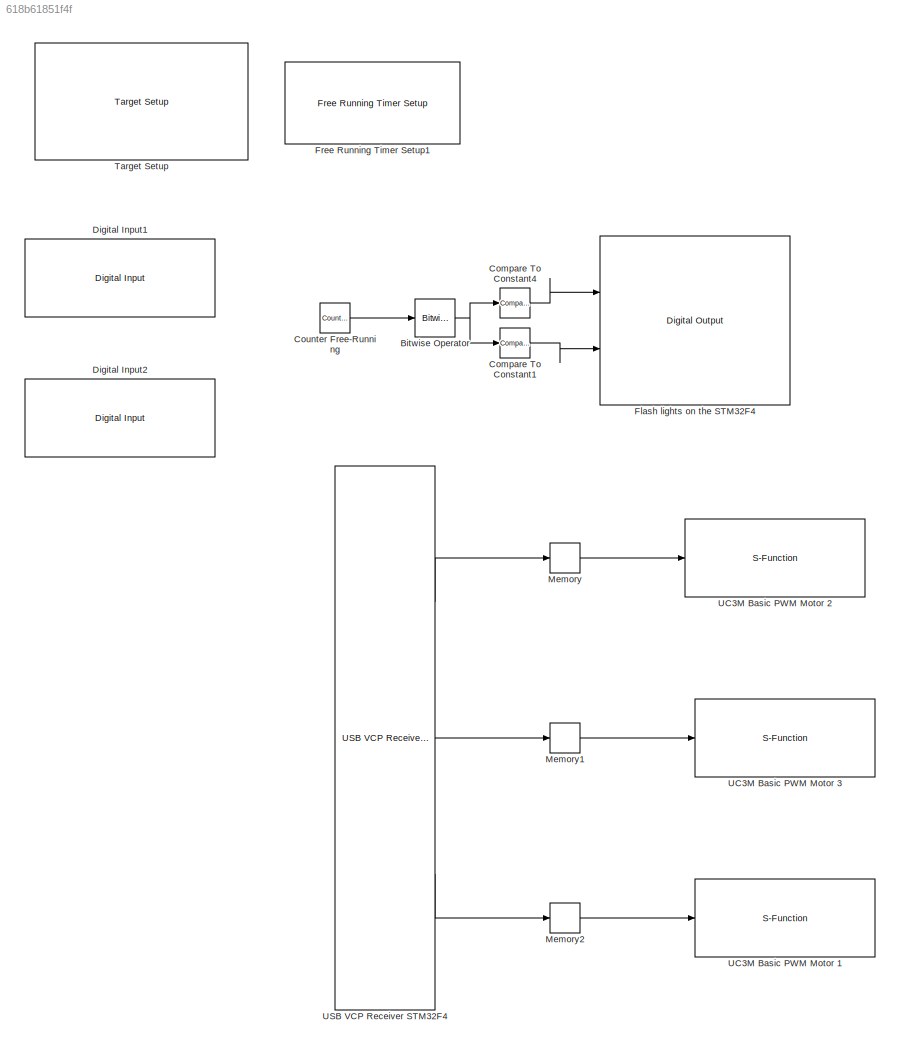
MODEL slx_618b61851f4f
KIND model
CONFIG AbsTol = auto
CONFIG EnableMultiTasking = off
CONFIG FixedStep = 0.001
CONFIG MaxStep = auto
CONFIG MinStep = auto
CONFIG PreLoadFcn = waijung.modelPreload; % Required for working with Waijung Blockset. Do not remove.
CONFIG RelTol = 1e-3
CONFIG SampleTimeConstraint = Unconstrained
CONFIG Solver = ode3
CONFIG SolverName = ode3
CONFIG StartTime = 0.0
CONFIG StopTime = 0.1
BLOCK [Reference] Bitwise Operator  REF=simulink/Logic and Bit
Operations/Bitwise
Operator
  Ports = [1, 1]
  SourceBlock = simulink/Logic and Bit\nOperations/Bitwise\nOperator
  SourceType = Bitwise Operator
BLOCK [Reference] Compare To Constant1  REF=simulink/Logic and Bit
Operations/Compare
To Constant
  Ports = [1, 1]
  SourceBlock = simulink/Logic and Bit\nOperations/Compare\nTo Constant
  SourceType = Compare To Constant
BLOCK [Reference] Compare To Constant4  REF=simulink/Logic and Bit
Operations/Compare
To Constant
  Ports = [1, 1]
  SourceBlock = simulink/Logic and Bit\nOperations/Compare\nTo Constant
  SourceType = Compare To Constant
BLOCK [Reference] Counter Free-Running  REF=simulink/Sources/Counter
Free-Running
  Ports = [0, 1]
  SourceBlock = simulink/Sources/Counter\nFree-Running
  SourceType = Counter Free-Running
BLOCK [Reference] Digital Input1  REF=stm32f4_io_lib/Digital Input
  Ports = [0, 2]
  SourceBlock = stm32f4_io_lib/Digital Input
  SourceType = stm32f4_digital_input
BLOCK [Reference] Digital Input2  REF=stm32f4_io_lib/Digital Input
  Commented = on
  Ports = [0, 1]
  SourceBlock = stm32f4_io_lib/Digital Input
  SourceType = stm32f4_digital_input
BLOCK [Reference] Flash lights on the STM32F4  REF=stm32f4_io_lib/Digital Output
  Ports = [2]
  SourceBlock = stm32f4_io_lib/Digital Output
  SourceType = stm32f4_digital_output
BLOCK [Reference] Free Running Timer Setup1  REF=BC_TIME_PROFILING/Free Running Timer
Setup
  Ports = []
  SourceBlock = BC_TIME_PROFILING/Free Running Timer\nSetup
BLOCK [Memory] Memory
  InheritSampleTime = on
BLOCK [Memory] Memory1
  InheritSampleTime = on
BLOCK [Memory] Memory2
  InheritSampleTime = on
BLOCK [Reference] Target Setup  REF=stm32f4_device_config_lib/Target Setup
  Ports = []
  Priority = 100
  SourceBlock = stm32f4_device_config_lib/Target Setup
  SourceType = stm32f4_target_setup
BLOCK [S-Function] UC3M Basic PWM Motor 1
  EnableBusSupport = off
  FunctionName = stm32f4_basicpwm_fixed
  Parameters = timer,pwmperiod,uc3m_pwmperiod,ch1pin,ch2pin,ch3pin,ch4pin,sampletime,sampletimestr,blockid,apb,portstr,pinstr,pinmat,timarr,timprescale,chmat,polaritystr
  Ports = [1]
  SFcnIsStateOwnerBlock = off
  SFunctionDeploymentMode = off
BLOCK [S-Function] UC3M Basic PWM Motor 2
  EnableBusSupport = off
  FunctionName = stm32f4_basicpwm_fixed
  Parameters = timer,pwmperiod,uc3m_pwmperiod,ch1pin,ch2pin,ch3pin,ch4pin,sampletime,sampletimestr,blockid,apb,portstr,pinstr,pinmat,timarr,timprescale,chmat,polaritystr
  Ports = [1]
  SFcnIsStateOwnerBlock = off
  SFunctionDeploymentMode = off
BLOCK [S-Function] UC3M Basic PWM Motor 3
  EnableBusSupport = off
  FunctionName = stm32f4_basicpwm_fixed
  Parameters = timer,pwmperiod,uc3m_pwmperiod,ch1pin,ch2pin,ch3pin,ch4pin,sampletime,sampletimestr,blockid,apb,portstr,pinstr,pinmat,timarr,timprescale,chmat,polaritystr
  Ports = [1]
  SFcnIsStateOwnerBlock = off
  SFunctionDeploymentMode = off
BLOCK [Reference] USB VCP Receiver STM32F4  REF=BC_USB/USB VCP Receiver STM32F4
  Ports = [0, 3]
  SourceBlock = BC_USB/USB VCP Receiver STM32F4
  SourceType = USB_VCP_RECEIVER_STM32F4 High Speed Large Data Packet Size
NET Bitwise Operator:1 -> Compare To Constant1:1, Compare To Constant4:1
LINE Compare To Constant1:1 -> Flash lights on the STM32F4:2
LINE Compare To Constant4:1 -> Flash lights on the STM32F4:1
LINE Counter Free-Running:1 -> Bitwise Operator:1
LINE Memory1:1 -> UC3M Basic PWM Motor 3:1
LINE Memory2:1 -> UC3M Basic PWM Motor 1:1
LINE Memory:1 -> UC3M Basic PWM Motor 2:1
LINE USB VCP Receiver STM32F4:1 -> Memory:1
LINE USB VCP Receiver STM32F4:2 -> Memory1:1
LINE USB VCP Receiver STM32F4:3 -> Memory2:1
note: NET lines group one-source signal fan-out (src -> all destinations, sorted); 1:1 wires keep LINE
